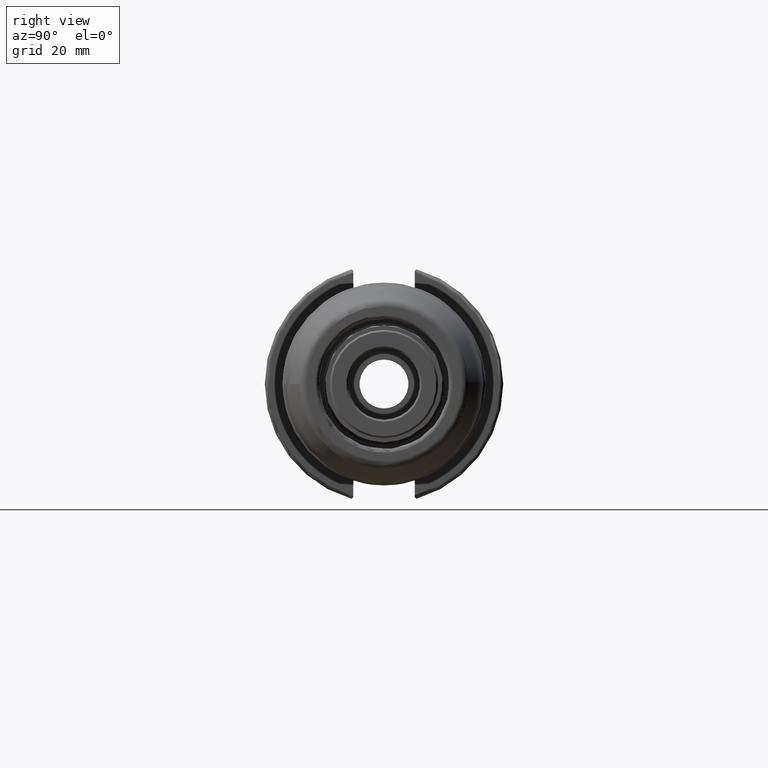
[diagram: clean part render]
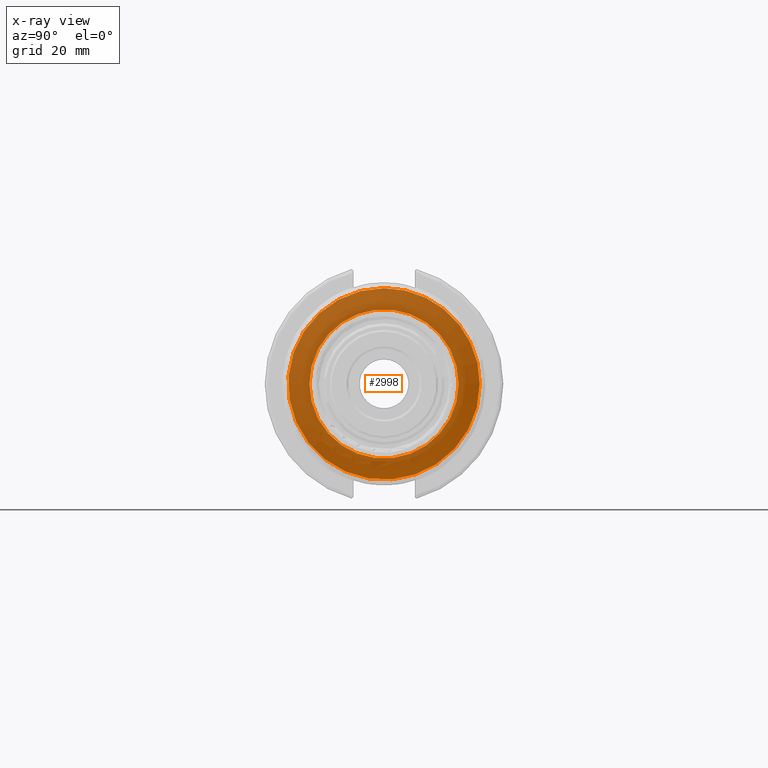
[diagram: x-ray — body ghosted, one internal face saturated and labeled with its STEP entity id]
A machine part, right view, then the same camera in x-ray: the body is ghosted and one INTERNAL B-rep face — a face not visible from any outside direction — is saturated and labeled: STEP entity #2998.
In plain terms, the highlighted planar face has unit normal (-1, 0, 0).
Its self-contained STEP definition (entity closure, byte-faithful):
#233=FACE_BOUND('',#607,.T.);
#291=PLANE('',#3363);
#435=FACE_OUTER_BOUND('',#606,.T.);
#606=EDGE_LOOP('',(#2705,#2706));
#607=EDGE_LOOP('',(#2707));
#1073=CIRCLE('',#3360,19.85);
#1076=CIRCLE('',#3364,25.5);
#1077=CIRCLE('',#3365,25.5);
#1399=VERTEX_POINT('',#6876);
#1402=VERTEX_POINT('',#6884);
#1403=VERTEX_POINT('',#6885);
#1845=EDGE_CURVE('',#1399,#1399,#1073,.T.);
#1849=EDGE_CURVE('',#1402,#1403,#1076,.T.);
#1850=EDGE_CURVE('',#1403,#1402,#1077,.T.);
#2705=ORIENTED_EDGE('',*,*,#1849,.F.);
#2706=ORIENTED_EDGE('',*,*,#1850,.F.);
#2707=ORIENTED_EDGE('',*,*,#1845,.F.);
#2998=ADVANCED_FACE('',(#435,#233),#291,.T.);
#3360=AXIS2_PLACEMENT_3D('',#6877,#4112,#4113);
#3363=AXIS2_PLACEMENT_3D('',#6883,#4119,#4120);
#3364=AXIS2_PLACEMENT_3D('',#6886,#4121,#4122);
#3365=AXIS2_PLACEMENT_3D('',#6887,#4123,#4124);
#4112=DIRECTION('center_axis',(-1.,0.,0.));
#4113=DIRECTION('ref_axis',(0.,-1.,0.));
#4119=DIRECTION('center_axis',(-1.,0.,0.));
#4120=DIRECTION('ref_axis',(0.,0.,1.));
#4121=DIRECTION('center_axis',(1.,0.,0.));
#4122=DIRECTION('ref_axis',(0.,-1.,1.83697019872103E-16));
#4123=DIRECTION('center_axis',(1.,0.,0.));
#4124=DIRECTION('ref_axis',(0.,-1.,1.83697019872103E-16));
#6876=CARTESIAN_POINT('',(0.,19.85,-2.4309238963075E-15));
#6877=CARTESIAN_POINT('Origin',(0.,0.,0.));
#6883=CARTESIAN_POINT('Origin',(0.,26.5,0.));
#6884=CARTESIAN_POINT('',(0.,25.5,-1.56142466891288E-15));
#6885=CARTESIAN_POINT('',(0.,-3.12284933782575E-15,25.5));
#6886=CARTESIAN_POINT('Origin',(0.,0.,0.));
#6887=CARTESIAN_POINT('Origin',(0.,0.,0.));